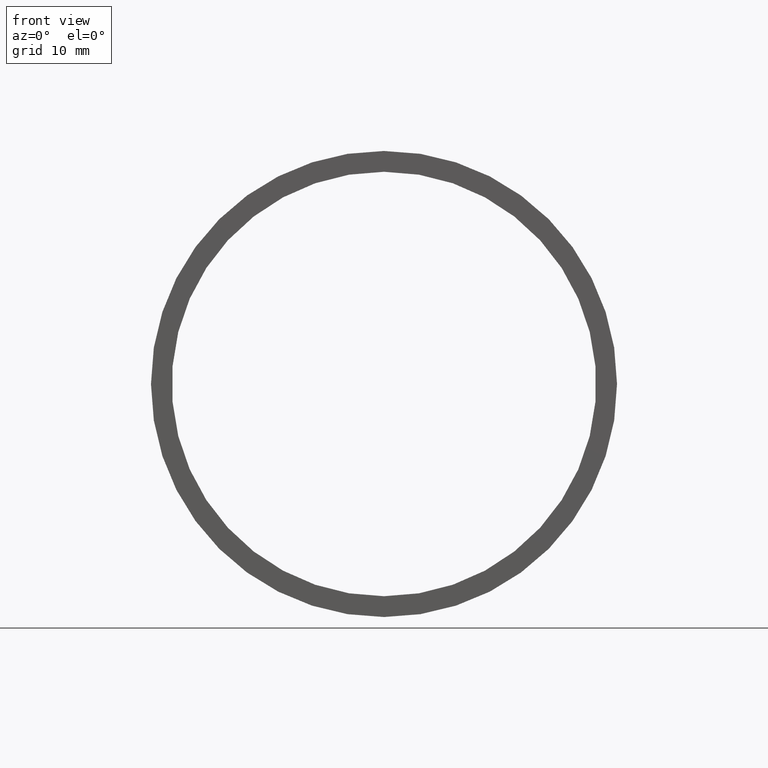
[diagram: clean part render]
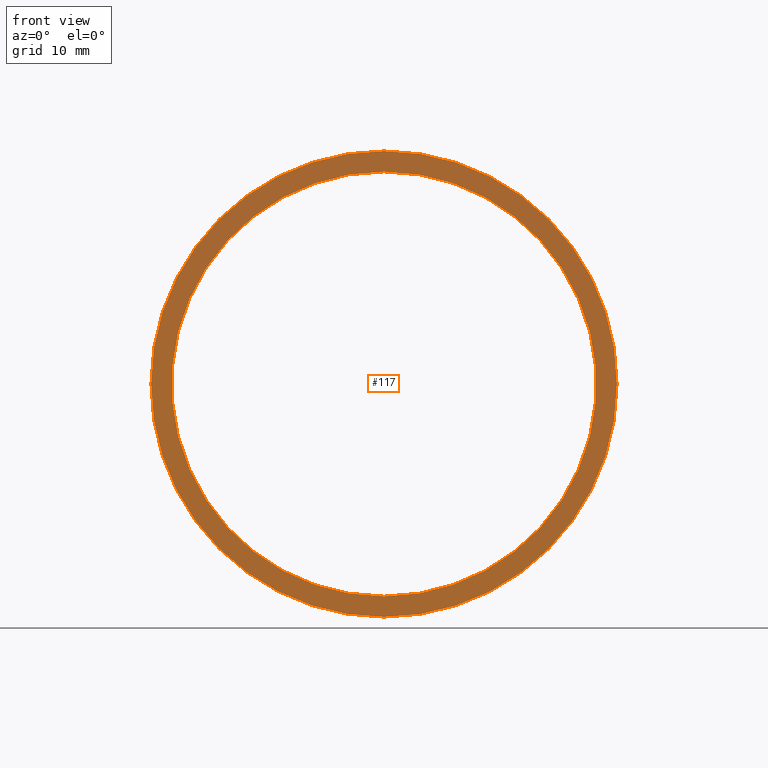
[diagram: same view with one face highlighted and labeled with its STEP entity id]
A machine part, front view. The second image highlights one B-rep face of the part: STEP entity #117.
In plain terms, the highlighted planar face has unit normal (-0, 1, 0).
Its self-contained STEP definition (entity closure, byte-faithful):
#12 = DIRECTION ( 'NONE',  ( 0.0000000000000000000, 0.0000000000000000000, 1.000000000000000000 ) ) ;
#17 = CIRCLE ( 'NONE', #72, 28.00000000000002100 ) ;
#20 = CARTESIAN_POINT ( 'NONE',  ( 0.0000000000000000000, -2.775557561562891400E-014, 28.00000000000002100 ) ) ;
#21 = AXIS2_PLACEMENT_3D ( 'NONE', #76, #195, #12 ) ;
#29 = DIRECTION ( 'NONE',  ( 0.0000000000000000000, 0.0000000000000000000, 1.000000000000000000 ) ) ;
#32 = CARTESIAN_POINT ( 'NONE',  ( 0.0000000000000000000, -2.775557561562891400E-014, 0.0000000000000000000 ) ) ;
#34 = CARTESIAN_POINT ( 'NONE',  ( 3.429011037612591600E-015, -2.775557561562891400E-014, -28.00000000000002100 ) ) ;
#35 = EDGE_LOOP ( 'NONE', ( #187, #132 ) ) ;
#40 = VERTEX_POINT ( 'NONE', #133 ) ;
#56 = DIRECTION ( 'NONE',  ( 0.0000000000000000000, 0.0000000000000000000, 1.000000000000000000 ) ) ;
#60 = EDGE_LOOP ( 'NONE', ( #129, #155 ) ) ;
#66 = CARTESIAN_POINT ( 'NONE',  ( 0.0000000000000000000, -2.775557561562891400E-014, 0.0000000000000000000 ) ) ;
#72 = AXIS2_PLACEMENT_3D ( 'NONE', #32, #239, #115 ) ;
#76 = CARTESIAN_POINT ( 'NONE',  ( 25.50000000000001400, -1.390324872067691800E-014, 0.0000000000000000000 ) ) ;
#77 = DIRECTION ( 'NONE',  ( -0.0000000000000000000, 1.000000000000000000, -0.0000000000000000000 ) ) ;
#89 = VERTEX_POINT ( 'NONE', #212 ) ;
#115 = DIRECTION ( 'NONE',  ( 0.0000000000000000000, 0.0000000000000000000, 1.000000000000000000 ) ) ;
#116 = CIRCLE ( 'NONE', #179, 28.00000000000002100 ) ;
#117 = ADVANCED_FACE ( 'NONE', ( #193, #138 ), #214, .F. ) ;
#122 = EDGE_CURVE ( 'NONE', #40, #89, #154, .T. ) ;
#129 = ORIENTED_EDGE ( 'NONE', *, *, #173, .F. ) ;
#132 = ORIENTED_EDGE ( 'NONE', *, *, #209, .T. ) ;
#133 = CARTESIAN_POINT ( 'NONE',  ( 0.0000000000000000000, -2.775557561562891400E-014, 25.50000000000001400 ) ) ;
#138 = FACE_BOUND ( 'NONE', #35, .T. ) ;
#142 = AXIS2_PLACEMENT_3D ( 'NONE', #149, #148, #56 ) ;
#148 = DIRECTION ( 'NONE',  ( -0.0000000000000000000, 1.000000000000000000, -0.0000000000000000000 ) ) ;
#149 = CARTESIAN_POINT ( 'NONE',  ( 0.0000000000000000000, -2.775557561562891400E-014, 0.0000000000000000000 ) ) ;
#154 = CIRCLE ( 'NONE', #198, 25.50000000000001400 ) ;
#155 = ORIENTED_EDGE ( 'NONE', *, *, #180, .F. ) ;
#173 = EDGE_CURVE ( 'NONE', #207, #229, #116, .T. ) ;
#174 = DIRECTION ( 'NONE',  ( -0.0000000000000000000, 1.000000000000000000, -0.0000000000000000000 ) ) ;
#179 = AXIS2_PLACEMENT_3D ( 'NONE', #200, #77, #29 ) ;
#180 = EDGE_CURVE ( 'NONE', #229, #207, #17, .T. ) ;
#187 = ORIENTED_EDGE ( 'NONE', *, *, #122, .T. ) ;
#193 = FACE_OUTER_BOUND ( 'NONE', #60, .T. ) ;
#195 = DIRECTION ( 'NONE',  ( -0.0000000000000000000, 1.000000000000000000, 0.0000000000000000000 ) ) ;
#198 = AXIS2_PLACEMENT_3D ( 'NONE', #66, #174, #199 ) ;
#199 = DIRECTION ( 'NONE',  ( 0.0000000000000000000, 0.0000000000000000000, 1.000000000000000000 ) ) ;
#200 = CARTESIAN_POINT ( 'NONE',  ( 0.0000000000000000000, -2.775557561562891400E-014, 0.0000000000000000000 ) ) ;
#207 = VERTEX_POINT ( 'NONE', #20 ) ;
#209 = EDGE_CURVE ( 'NONE', #89, #40, #224, .T. ) ;
#212 = CARTESIAN_POINT ( 'NONE',  ( 3.122849337825752600E-015, -2.775557561562891400E-014, -25.50000000000001400 ) ) ;
#214 = PLANE ( 'NONE',  #21 ) ;
#224 = CIRCLE ( 'NONE', #142, 25.50000000000001400 ) ;
#229 = VERTEX_POINT ( 'NONE', #34 ) ;
#239 = DIRECTION ( 'NONE',  ( -0.0000000000000000000, 1.000000000000000000, -0.0000000000000000000 ) ) ;